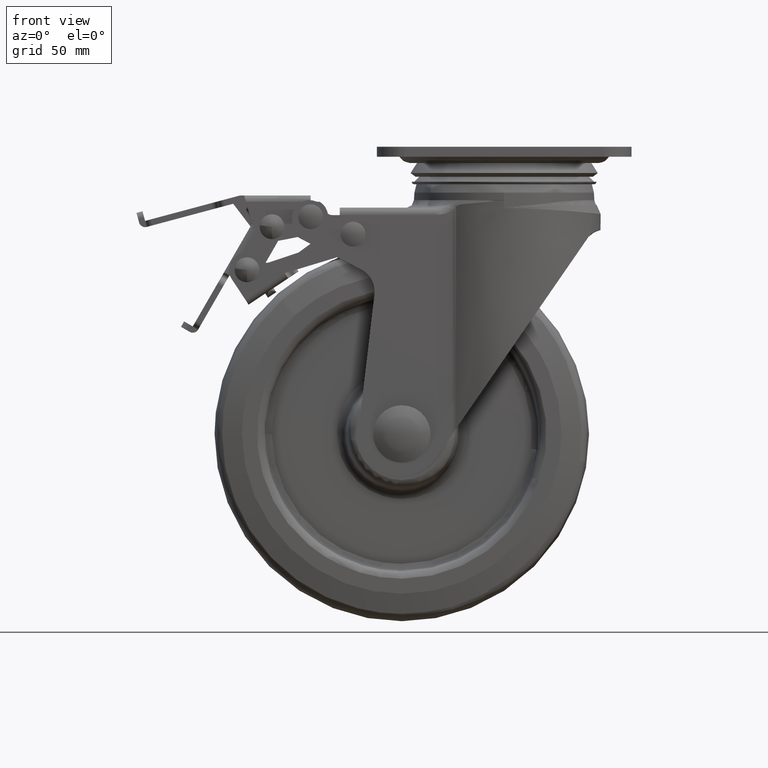
[diagram: clean part render]
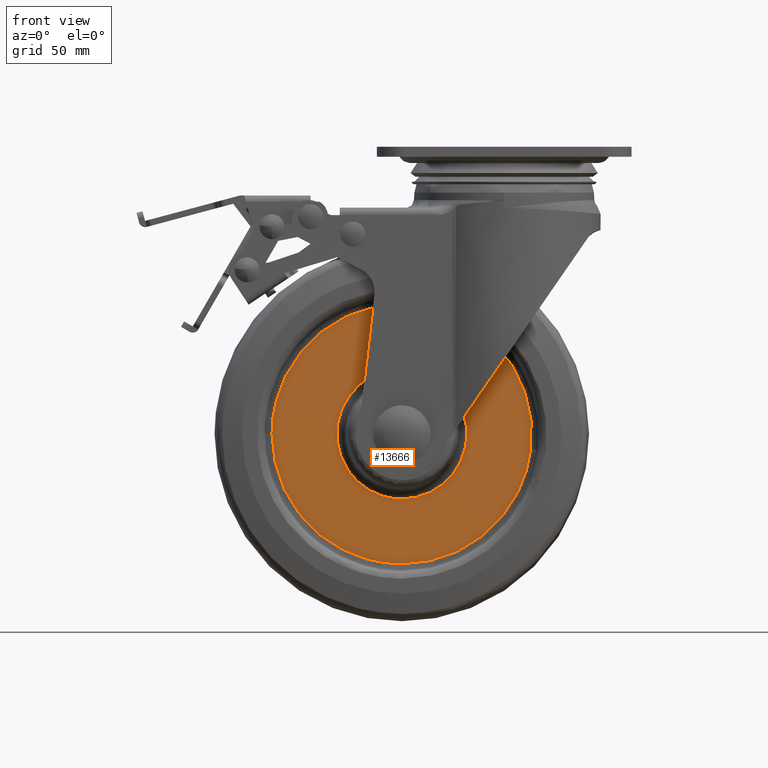
[diagram: same view with one face highlighted and labeled with its STEP entity id]
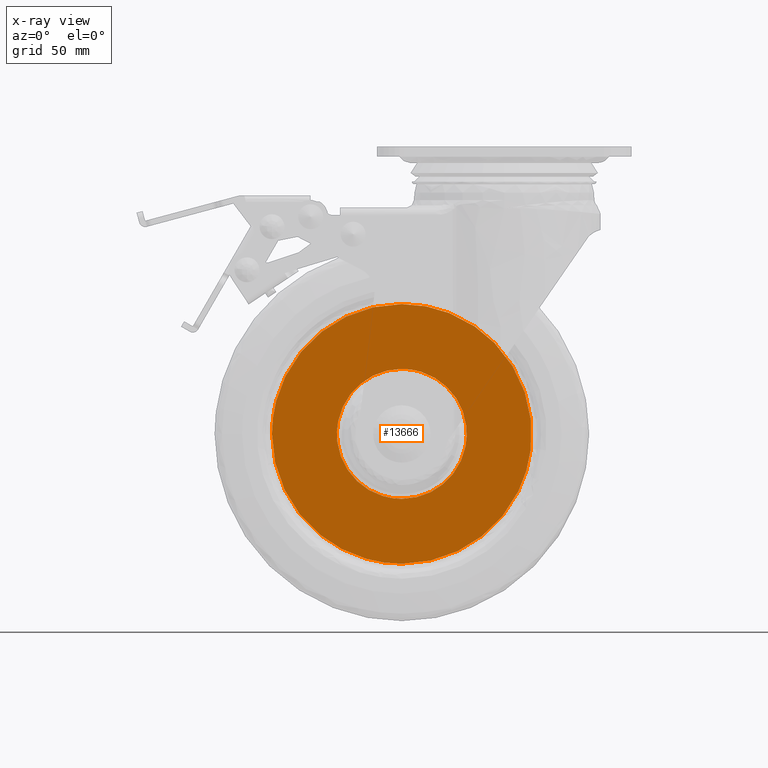
[diagram: x-ray of the same camera — body ghosted, the highlighted face saturated]
A machine part, front view. The second image highlights one B-rep face of the part: STEP entity #13666.
The next image is the same camera in x-ray: the body ghosted, the highlighted face saturated — about 0% of this face is hidden behind the body in this view.
In plain terms, the highlighted face is a freeform B-spline surface patch.
Its self-contained STEP definition (entity closure, byte-faithful):
#12814=CARTESIAN_POINT('',(-92.999985386133858,-8.999999249999029,-115.000007000000000));
#12815=VERTEX_POINT('',#12814);
#12827=CARTESIAN_POINT('',(-41.0,-8.999999249999000,-63.000021812500101));
#12828=VERTEX_POINT('',#12827);
#12829=CARTESIAN_POINT('',(-41.0,-8.999999249999000,-63.000021812500101));
#12830=CARTESIAN_POINT('',(-44.509785719188663,-8.999999249999016,-62.999496755056242));
#12831=CARTESIAN_POINT('',(-49.401947341938303,-8.999999249998993,-63.497261817117739));
#12832=CARTESIAN_POINT('',(-56.118348482722112,-8.999999249998986,-65.157934722652669));
#12833=CARTESIAN_POINT('',(-61.842317910348889,-8.999999249999029,-67.185994315086603));
#12834=CARTESIAN_POINT('',(-67.627154464357972,-8.999999249999025,-70.164961188102041));
#12835=CARTESIAN_POINT('',(-73.673930083521881,-8.999999249998885,-74.340817508793066));
#12836=CARTESIAN_POINT('',(-79.193838343196930,-8.999999249999377,-79.374540086576488));
#12837=CARTESIAN_POINT('',(-84.552587382055094,-8.999999249998673,-86.154890046320304));
#12838=CARTESIAN_POINT('',(-88.207079507033441,-8.999999249999071,-92.794834137505489));
#12839=CARTESIAN_POINT('',(-91.020877831988315,-8.999999249999034,-100.156544714591600));
#12840=CARTESIAN_POINT('',(-92.633531626298719,-8.999999249999014,-107.235992915504700));
#12841=CARTESIAN_POINT('',(-93.000016318983640,-8.999999249999032,-112.660205158902700));
#12842=CARTESIAN_POINT('',(-92.999985386133858,-8.999999249999029,-115.000007000000000));
#12843=B_SPLINE_CURVE_WITH_KNOTS('',3,(#12829,#12830,#12831,#12832,#12833,#12834,#12835,#12836,#12837,#12838,#12839,#12840,#12841,#12842),.UNSPECIFIED.,.F.,.U.,(4,1,1,1,1,1,1,1,1,1,1,4),(0.000000099524215,10.529217607566000,14.677146469000521,20.739447620471768,28.716193442807320,34.140343272744623,42.755091207562522,51.050942337001551,59.984856258369433,65.409027378644367,74.662065962014154,81.681514078576626),.UNSPECIFIED.);
#12844=EDGE_CURVE('',#12828,#12815,#12843,.T.);
#12846=CARTESIAN_POINT('',(10.652190700597689,-8.999999249999029,-121.004145238847000));
#12847=VERTEX_POINT('',#12846);
#12848=CARTESIAN_POINT('',(10.652190700597689,-8.999999249999029,-121.004145238847000));
#12849=CARTESIAN_POINT('',(11.061455172452259,-8.999999249999025,-117.487925677734790));
#12850=CARTESIAN_POINT('',(11.141804867412160,-8.999999249998933,-111.519553122747000));
#12851=CARTESIAN_POINT('',(9.973353430590418,-8.999999249999146,-104.171656351117900));
#12852=CARTESIAN_POINT('',(8.420334926317700,-8.999999249998883,-98.553219690512364));
#12853=CARTESIAN_POINT('',(6.566450336948742,-8.999999249999053,-93.752035358612190));
#12854=CARTESIAN_POINT('',(3.592514098342789,-8.999999249999018,-87.953294315817885));
#12855=CARTESIAN_POINT('',(-0.777686589022446,-8.999999249998911,-81.641822712150770));
#12856=CARTESIAN_POINT('',(-6.404270022486737,-8.999999249999011,-75.919713558776763));
#12857=CARTESIAN_POINT('',(-12.891389584542130,-8.999999249999002,-71.032741799691635));
#12858=CARTESIAN_POINT('',(-18.622296841381829,-8.999999249998993,-67.896855969748373));
#12859=CARTESIAN_POINT('',(-24.797619486553970,-8.999999249998993,-65.486090703671906));
#12860=CARTESIAN_POINT('',(-31.750682899627311,-8.999999249999011,-63.585419699906808));
#12861=CARTESIAN_POINT('',(-37.460021883481531,-8.999999249998998,-62.999474525323187));
#12862=CARTESIAN_POINT('',(-41.0,-8.999999249999000,-63.000021812500101));
#12863=B_SPLINE_CURVE_WITH_KNOTS('',3,(#12848,#12849,#12850,#12851,#12852,#12853,#12854,#12855,#12856,#12857,#12858,#12859,#12860,#12861,#12862),.UNSPECIFIED.,.F.,.U.,(4,1,1,1,1,1,1,1,1,1,1,1,4),(0.000000100359443,10.619766101096079,17.813868673810969,22.267353011074601,28.091126483064421,33.229761924534088,41.794125156298620,51.043614845830021,57.209929326930862,66.116903786487512,70.570373657397042,77.079293431550127,87.699104452154558),.UNSPECIFIED.);
#12864=EDGE_CURVE('',#12847,#12828,#12863,.T.);
#12906=CARTESIAN_POINT('',(-41.0,-8.999999249999000,-166.999992187499910));
#12907=VERTEX_POINT('',#12906);
#12908=CARTESIAN_POINT('',(-41.0,-8.999999249999000,-166.999992187499910));
#12909=CARTESIAN_POINT('',(-37.354688165474450,-8.999999249999011,-167.000540276637110));
#12910=CARTESIAN_POINT('',(-31.837822318674569,-8.999999249998973,-166.417376344928700));
#12911=CARTESIAN_POINT('',(-24.028244484495360,-8.999999249999055,-164.303748248262710));
#12912=CARTESIAN_POINT('',(-18.459618920946681,-8.999999249999009,-162.000487393130900));
#12913=CARTESIAN_POINT('',(-12.869768817724459,-8.999999249998997,-158.862327867001800));
#12914=CARTESIAN_POINT('',(-8.618234305082948,-8.999999249999046,-155.811776166794690));
#12915=CARTESIAN_POINT('',(-4.273773953994973,-8.999999249998957,-151.943068506067310));
#12916=CARTESIAN_POINT('',(-0.209268884136772,-8.999999249998959,-147.500284796901210));
#12917=CARTESIAN_POINT('',(3.454731147631575,-8.999999249999343,-142.228491142944110));
#12918=CARTESIAN_POINT('',(6.445112127648881,-8.999999249998595,-136.556224485155500));
#12919=CARTESIAN_POINT('',(9.096925465010580,-8.999999249999659,-129.749759965293090));
#12920=CARTESIAN_POINT('',(10.265865771301151,-8.999999249998508,-124.331517900153700));
#12921=CARTESIAN_POINT('',(10.652190700597689,-8.999999249999029,-121.004145238847000));
#12922=B_SPLINE_CURVE_WITH_KNOTS('',3,(#12908,#12909,#12910,#12911,#12912,#12913,#12914,#12915,#12916,#12917,#12918,#12919,#12920,#12921),.UNSPECIFIED.,.F.,.U.,(4,1,1,1,1,1,1,1,1,1,1,4),(0.000000090785008,10.935774074475921,16.551476053807669,24.236110356041738,28.965111623463130,35.763047534312811,39.900874298336362,46.403248472418447,53.792315378610773,59.112453838303949,65.614850542749750,75.663927586541362),.UNSPECIFIED.);
#12923=EDGE_CURVE('',#12907,#12847,#12922,.T.);
#12925=CARTESIAN_POINT('',(-92.999985386133858,-8.999999249999029,-115.000007000000000));
#12926=CARTESIAN_POINT('',(-93.000196832342283,-8.999999249999034,-117.871632992835300));
#12927=CARTESIAN_POINT('',(-92.646663203987742,-8.999999249999002,-122.125780019583800));
#12928=CARTESIAN_POINT('',(-91.277928783263008,-8.999999249999064,-128.690382816789200));
#12929=CARTESIAN_POINT('',(-89.389353972465642,-8.999999249998984,-134.466876724442810));
#12930=CARTESIAN_POINT('',(-86.091265451319970,-8.999999249999027,-141.277334598169490));
#12931=CARTESIAN_POINT('',(-82.004136608630702,-8.999999249998945,-147.273948884981710));
#12932=CARTESIAN_POINT('',(-76.528916868889638,-8.999999249999030,-153.240928255031210));
#12933=CARTESIAN_POINT('',(-70.125745197761944,-8.999999249999027,-158.398287548490800));
#12934=CARTESIAN_POINT('',(-63.205182736027268,-8.999999249998979,-162.207107989377700));
#12935=CARTESIAN_POINT('',(-56.838254558308847,-8.999999249999013,-164.640431469979290));
#12936=CARTESIAN_POINT('',(-49.827388015391122,-8.999999249998993,-166.465448709345590));
#12937=CARTESIAN_POINT('',(-44.403433974661532,-8.999999249999021,-167.000484320791090));
#12938=CARTESIAN_POINT('',(-41.0,-8.999999249999000,-166.999992187499910));
#12939=B_SPLINE_CURVE_WITH_KNOTS('',3,(#12925,#12926,#12927,#12928,#12929,#12930,#12931,#12932,#12933,#12934,#12935,#12936,#12937,#12938),.UNSPECIFIED.,.F.,.U.,(4,1,1,1,1,1,1,1,1,1,1,4),(0.000000099521586,8.614840908859037,12.762704353658650,20.101309337506709,26.801748079747490,35.416619218213647,41.797897411083817,51.050942337036567,59.984856258411462,65.409027378689700,71.471328824880061,81.681514078636724),.UNSPECIFIED.);
#12940=EDGE_CURVE('',#12815,#12907,#12939,.T.);
#12970=CARTESIAN_POINT('',(-66.817982839299475,-8.999997626448964,-118.261576725811810));
#12971=VERTEX_POINT('',#12970);
#12972=CARTESIAN_POINT('',(-41.0,-8.999997626448970,-141.023190421486390));
#12973=VERTEX_POINT('',#12972);
#12974=CARTESIAN_POINT('',(-66.817982839299475,-8.999997626448964,-118.261576725811810));
#12975=CARTESIAN_POINT('',(-66.597289995390113,-8.999997626448970,-120.010539384555800));
#12976=CARTESIAN_POINT('',(-65.798434890160920,-8.999997626448961,-123.463220193963490));
#12977=CARTESIAN_POINT('',(-63.744445494898223,-8.999997626448973,-127.936227146388210));
#12978=CARTESIAN_POINT('',(-61.376645182612243,-8.999997626448966,-131.315385637379190));
#12979=CARTESIAN_POINT('',(-58.645313842667747,-8.999997626448897,-134.267377221408200));
#12980=CARTESIAN_POINT('',(-55.796031389647460,-8.999997626449225,-136.532964767522490));
#12981=CARTESIAN_POINT('',(-52.474775224544338,-8.999997626448554,-138.431439614049110));
#12982=CARTESIAN_POINT('',(-48.851039999791467,-8.999997626449151,-139.943264733430910));
#12983=CARTESIAN_POINT('',(-44.917409774791928,-8.999997626449034,-140.846765103831900));
#12984=CARTESIAN_POINT('',(-42.077264978418640,-8.999997626448899,-141.023191576538610));
#12985=CARTESIAN_POINT('',(-41.0,-8.999997626448970,-141.023190421486390));
#12986=B_SPLINE_CURVE_WITH_KNOTS('',3,(#12974,#12975,#12976,#12977,#12978,#12979,#12980,#12981,#12982,#12983,#12984,#12985),.UNSPECIFIED.,.F.,.U.,(4,1,1,1,1,1,1,1,1,4),(0.000000021546356,5.288473701694059,10.577019700799280,14.690327605493390,17.628362293901141,22.623013056703570,25.561089074063780,29.086784001479959,34.375322713484877,37.607150975512297),.UNSPECIFIED.);
#12987=EDGE_CURVE('',#12971,#12973,#12986,.T.);
#12989=CARTESIAN_POINT('',(-15.182017160700530,-8.999997626448964,-111.738437274188200));
#12990=VERTEX_POINT('',#12989);
#12991=CARTESIAN_POINT('',(-41.0,-8.999997626448970,-141.023190421486390));
#12992=CARTESIAN_POINT('',(-38.930547463059959,-8.999997626448996,-141.023689436384500));
#12993=CARTESIAN_POINT('',(-35.941671311828259,-8.999997626448955,-140.664696721014200));
#12994=CARTESIAN_POINT('',(-31.861724049106758,-8.999997626448961,-139.439998262945890));
#12995=CARTESIAN_POINT('',(-28.226261488841530,-8.999997626448975,-137.827730139838710));
#12996=CARTESIAN_POINT('',(-24.248962845763518,-8.999997626448998,-135.146982937815610));
#12997=CARTESIAN_POINT('',(-20.932649475702078,-8.999997626448907,-131.764576884365110));
#12998=CARTESIAN_POINT('',(-18.206099208003529,-8.999997626448929,-127.835137895112000));
#12999=CARTESIAN_POINT('',(-16.467171970161569,-8.999997626449135,-124.053755524217910));
#13000=CARTESIAN_POINT('',(-15.497818890816230,-8.999997626448950,-120.437507795702200));
#13001=CARTESIAN_POINT('',(-14.902618928255180,-8.999997626448890,-116.569947981736600));
#13002=CARTESIAN_POINT('',(-14.929364384260371,-8.999997626449105,-113.734482564617000));
#13003=CARTESIAN_POINT('',(-15.182017160700530,-8.999997626448964,-111.738437274188200));
#13004=B_SPLINE_CURVE_WITH_KNOTS('',3,(#12991,#12992,#12993,#12994,#12995,#12996,#12997,#12998,#12999,#13000,#13001,#13002,#13003),.UNSPECIFIED.,.F.,.U.,(4,1,1,1,1,1,1,1,1,1,4),(0.000000161536413,6.208186436978600,8.967418674978397,12.761356752772169,18.107378865517141,23.280812711027039,26.902272840345720,32.420721581354563,35.697294432388290,38.111621269752689,44.147371380983778),.UNSPECIFIED.);
#13005=EDGE_CURVE('',#12973,#12990,#13004,.T.);
#13058=CARTESIAN_POINT('',(-41.0,-8.999997626448970,-88.976823578513603));
#13059=VERTEX_POINT('',#13058);
#13060=CARTESIAN_POINT('',(-41.0,-8.999997626448970,-88.976823578513603));
#13061=CARTESIAN_POINT('',(-42.264617687251231,-8.999997626448980,-88.976764626895360));
#13062=CARTESIAN_POINT('',(-44.851350779015561,-8.999997626449003,-89.165734309189489));
#13063=CARTESIAN_POINT('',(-48.450450462391942,-8.999997626448938,-89.978055977355922));
#13064=CARTESIAN_POINT('',(-51.629475018065122,-8.999997626449012,-91.178948563565910));
#13065=CARTESIAN_POINT('',(-54.539735966076996,-8.999997626448959,-92.695675292808218));
#13066=CARTESIAN_POINT('',(-57.049322628884667,-8.999997626448984,-94.436084584910233));
#13067=CARTESIAN_POINT('',(-59.675704251290753,-8.999997626449027,-96.765888425678227));
#13068=CARTESIAN_POINT('',(-62.240295902660201,-8.999997626448947,-99.733580829113677));
#13069=CARTESIAN_POINT('',(-64.396221461380861,-8.999997626448943,-103.354744813565110));
#13070=CARTESIAN_POINT('',(-65.777997612782357,-8.999997626448902,-106.835146670136790));
#13071=CARTESIAN_POINT('',(-66.621567742601286,-8.999997626448947,-110.066190725846600));
#13072=CARTESIAN_POINT('',(-67.112617741184849,-8.999997626449027,-113.837454377378800));
#13073=CARTESIAN_POINT('',(-67.019887778111780,-8.999997626448975,-116.664753964704000));
#13074=CARTESIAN_POINT('',(-66.817982839299475,-8.999997626448964,-118.261576725811810));
#13075=B_SPLINE_CURVE_WITH_KNOTS('',3,(#13060,#13061,#13062,#13063,#13064,#13065,#13066,#13067,#13068,#13069,#13070,#13071,#13072,#13073,#13074),.UNSPECIFIED.,.F.,.U.,(4,1,1,1,1,1,1,1,1,1,1,1,4),(0.000000161673910,3.793852853921351,7.760253557181841,11.036844254522070,13.968517955751070,17.589998218430232,20.176803027039188,24.487957678118619,29.316599775486701,32.765624568034902,35.697294432402309,39.318784308808922,44.147371380983977),.UNSPECIFIED.);
#13076=EDGE_CURVE('',#13059,#12971,#13075,.T.);
#13083=CARTESIAN_POINT('',(-15.182017160700530,-8.999997626448964,-111.738437274188200));
#13084=CARTESIAN_POINT('',(-15.402716822913300,-8.999997626448977,-109.989477005905700));
#13085=CARTESIAN_POINT('',(-16.201566364273418,-8.999997626448955,-106.536800222784190));
#13086=CARTESIAN_POINT('',(-18.337690225780179,-8.999997626448975,-101.884847335910190));
#13087=CARTESIAN_POINT('',(-21.032379147069051,-8.999997626448954,-98.129916090042997));
#13088=CARTESIAN_POINT('',(-23.603518806962779,-8.999997626449003,-95.562738357254844));
#13089=CARTESIAN_POINT('',(-26.301210078743260,-8.999997626448892,-93.442445353262599));
#13090=CARTESIAN_POINT('',(-29.162778703796199,-8.999997626449121,-91.719584393809100));
#13091=CARTESIAN_POINT('',(-32.424269882336837,-8.999997626448907,-90.359350768504754));
#13092=CARTESIAN_POINT('',(-36.299258603346587,-8.999997626448968,-89.282768154916738));
#13093=CARTESIAN_POINT('',(-39.139222359650887,-8.999997626449023,-88.976539748877471));
#13094=CARTESIAN_POINT('',(-41.0,-8.999997626448970,-88.976823578513603));
#13095=B_SPLINE_CURVE_WITH_KNOTS('',3,(#13083,#13084,#13085,#13086,#13087,#13088,#13089,#13090,#13091,#13092,#13093,#13094),.UNSPECIFIED.,.F.,.U.,(4,1,1,1,1,1,1,1,1,4),(0.000000021558520,5.288473701704639,10.577019700809510,15.277937008380469,19.097378034695350,21.447796470834788,25.561089074066619,29.086784001481782,32.024872721506661,37.607150975512234),.UNSPECIFIED.);
#13096=EDGE_CURVE('',#12990,#13059,#13095,.T.);
#13649=CARTESIAN_POINT('',(-98.194767394375432,-8.999998438223980,-57.805224841679241));
#13650=CARTESIAN_POINT('',(-98.194767394375432,-8.999998438223980,-172.194785438992000));
#13651=CARTESIAN_POINT('',(16.194443250036560,-8.999998438223980,-57.805224841679248));
#13652=CARTESIAN_POINT('',(16.194443250036560,-8.999998438223980,-172.194785438992000));
#13653=B_SPLINE_SURFACE_WITH_KNOTS('',1,1,((#13649,#13651),(#13650,#13652)),.UNSPECIFIED.,.F.,.F.,.U.,(2,2),(2,2),(0.0,114.389560597312690),(0.0,114.389210644412000),.UNSPECIFIED.);
#13654=ORIENTED_EDGE('',*,*,#12923,.T.);
#13655=ORIENTED_EDGE('',*,*,#12864,.T.);
#13656=ORIENTED_EDGE('',*,*,#12844,.T.);
#13657=ORIENTED_EDGE('',*,*,#12940,.T.);
#13658=EDGE_LOOP('',(#13654,#13655,#13656,#13657));
#13659=FACE_OUTER_BOUND('',#13658,.T.);
#13660=ORIENTED_EDGE('',*,*,#13005,.F.);
#13661=ORIENTED_EDGE('',*,*,#12987,.F.);
#13662=ORIENTED_EDGE('',*,*,#13076,.F.);
#13663=ORIENTED_EDGE('',*,*,#13096,.F.);
#13664=EDGE_LOOP('',(#13660,#13661,#13662,#13663));
#13665=FACE_BOUND('',#13664,.T.);
#13666=ADVANCED_FACE('',(#13659,#13665),#13653,.T.);